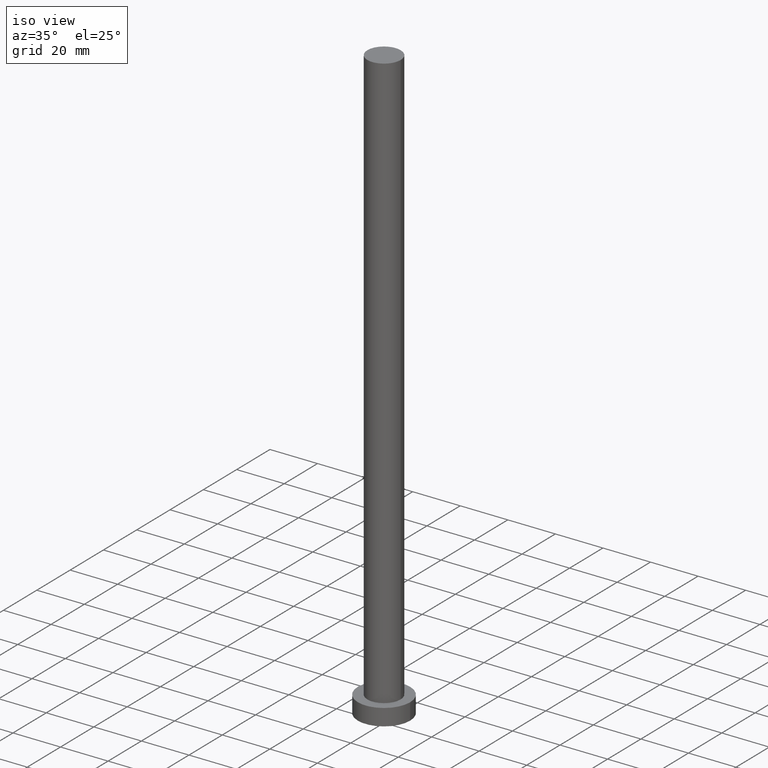
[diagram: clean part render]
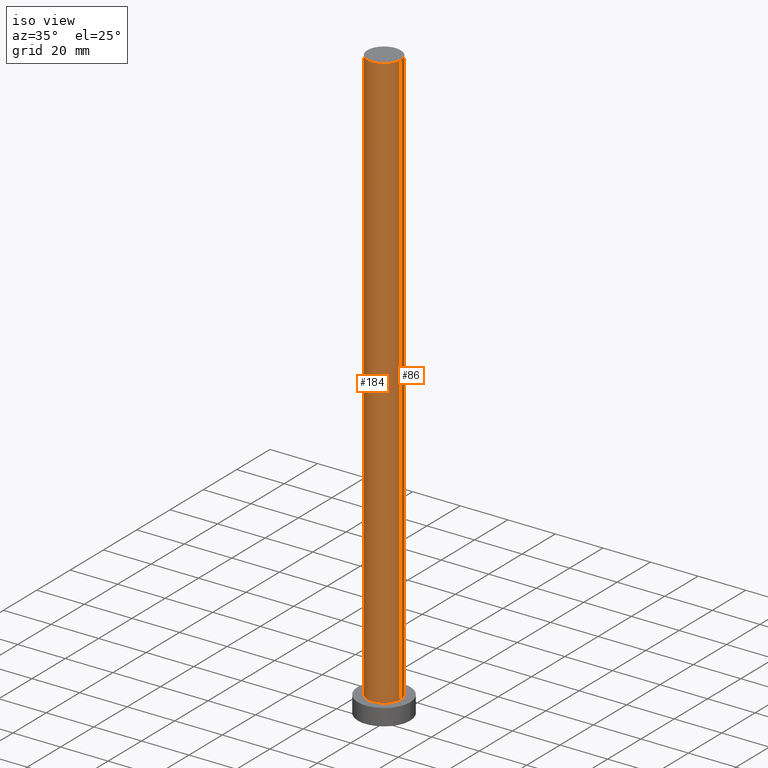
[diagram: same view with one multi-face feature highlighted, each face labeled with its STEP entity id]
A machine part, iso view. The highlighted faces form ONE feature: a constant-radius fillet chain: 2 tangent blend faces with common blend radius 7 mm. The faces share edges in the B-rep.
Their STEP definitions:
[1] entity #184 (Cylinder):
#7 = EDGE_CURVE ( 'NONE', #233, #238, #235, .T. ) ;
#8 = CARTESIAN_POINT ( 'NONE',  ( -7.000000000000000888, 0.000000000000000000, 7.000000000000000000 ) ) ;
#12 = CIRCLE ( 'NONE', #214, 7.000000000000000888 ) ;
#14 = EDGE_CURVE ( 'NONE', #238, #171, #221, .T. ) ;
#16 = CARTESIAN_POINT ( 'NONE',  ( 7.000000000000000888, 8.572527594031474176E-16, 250.0000000000000000 ) ) ;
#25 = EDGE_CURVE ( 'NONE', #233, #169, #250, .T. ) ;
#53 = DIRECTION ( 'NONE',  ( 1.000000000000000000, 0.000000000000000000, 0.000000000000000000 ) ) ;
#56 = DIRECTION ( 'NONE',  ( -0.000000000000000000, -0.000000000000000000, -1.000000000000000000 ) ) ;
#64 = CARTESIAN_POINT ( 'NONE',  ( 7.000000000000000888, 8.572527594031474176E-16, 7.000000000000000000 ) ) ;
#66 = CYLINDRICAL_SURFACE ( 'NONE', #72, 7.000000000000000888 ) ;
#72 = AXIS2_PLACEMENT_3D ( 'NONE', #210, #182, #87 ) ;
#73 = DIRECTION ( 'NONE',  ( 0.000000000000000000, 0.000000000000000000, 1.000000000000000000 ) ) ;
#80 = VECTOR ( 'NONE', #83, 1000.000000000000000 ) ;
#82 = EDGE_CURVE ( 'NONE', #169, #171, #12, .T. ) ;
#83 = DIRECTION ( 'NONE',  ( -0.000000000000000000, -0.000000000000000000, -1.000000000000000000 ) ) ;
#87 = DIRECTION ( 'NONE',  ( -1.000000000000000000, 0.000000000000000000, 0.000000000000000000 ) ) ;
#90 = DIRECTION ( 'NONE',  ( 0.000000000000000000, 0.000000000000000000, 1.000000000000000000 ) ) ;
#92 = ORIENTED_EDGE ( 'NONE', *, *, #25, .T. ) ;
#146 = CARTESIAN_POINT ( 'NONE',  ( -7.000000000000000888, 0.000000000000000000, 250.0000000000000000 ) ) ;
#153 = CARTESIAN_POINT ( 'NONE',  ( 0.000000000000000000, 0.000000000000000000, 7.000000000000000000 ) ) ;
#162 = CARTESIAN_POINT ( 'NONE',  ( 7.000000000000000888, 8.572527594031474176E-16, 250.0000000000000000 ) ) ;
#163 = CARTESIAN_POINT ( 'NONE',  ( -7.000000000000000888, 0.000000000000000000, 250.0000000000000000 ) ) ;
#167 = EDGE_LOOP ( 'NONE', ( #252, #216, #92, #194 ) ) ;
#169 = VERTEX_POINT ( 'NONE', #8 ) ;
#171 = VERTEX_POINT ( 'NONE', #64 ) ;
#174 = VECTOR ( 'NONE', #56, 1000.000000000000000 ) ;
#182 = DIRECTION ( 'NONE',  ( -0.000000000000000000, -0.000000000000000000, -1.000000000000000000 ) ) ;
#183 = AXIS2_PLACEMENT_3D ( 'NONE', #253, #90, #239 ) ;
#184 = ADVANCED_FACE ( 'NONE', ( #240 ), #66, .T. ) ;
#194 = ORIENTED_EDGE ( 'NONE', *, *, #82, .T. ) ;
#210 = CARTESIAN_POINT ( 'NONE',  ( 0.000000000000000000, 0.000000000000000000, 250.0000000000000000 ) ) ;
#214 = AXIS2_PLACEMENT_3D ( 'NONE', #153, #73, #53 ) ;
#216 = ORIENTED_EDGE ( 'NONE', *, *, #7, .F. ) ;
#221 = LINE ( 'NONE', #16, #80 ) ;
#233 = VERTEX_POINT ( 'NONE', #163 ) ;
#235 = CIRCLE ( 'NONE', #183, 7.000000000000000888 ) ;
#238 = VERTEX_POINT ( 'NONE', #162 ) ;
#239 = DIRECTION ( 'NONE',  ( 1.000000000000000000, 0.000000000000000000, 0.000000000000000000 ) ) ;
#240 = FACE_OUTER_BOUND ( 'NONE', #167, .T. ) ;
#250 = LINE ( 'NONE', #146, #174 ) ;
#252 = ORIENTED_EDGE ( 'NONE', *, *, #14, .F. ) ;
#253 = CARTESIAN_POINT ( 'NONE',  ( 0.000000000000000000, 0.000000000000000000, 250.0000000000000000 ) ) ;
[2] entity #86 (Cylinder):
#8 = CARTESIAN_POINT ( 'NONE',  ( -7.000000000000000888, 0.000000000000000000, 7.000000000000000000 ) ) ;
#10 = DIRECTION ( 'NONE',  ( 1.000000000000000000, 0.000000000000000000, 0.000000000000000000 ) ) ;
#11 = AXIS2_PLACEMENT_3D ( 'NONE', #165, #28, #121 ) ;
#14 = EDGE_CURVE ( 'NONE', #238, #171, #221, .T. ) ;
#15 = DIRECTION ( 'NONE',  ( 0.000000000000000000, 0.000000000000000000, 1.000000000000000000 ) ) ;
#16 = CARTESIAN_POINT ( 'NONE',  ( 7.000000000000000888, 8.572527594031474176E-16, 250.0000000000000000 ) ) ;
#25 = EDGE_CURVE ( 'NONE', #233, #169, #250, .T. ) ;
#28 = DIRECTION ( 'NONE',  ( -0.000000000000000000, -0.000000000000000000, -1.000000000000000000 ) ) ;
#40 = CIRCLE ( 'NONE', #57, 7.000000000000000888 ) ;
#52 = CIRCLE ( 'NONE', #202, 7.000000000000000888 ) ;
#56 = DIRECTION ( 'NONE',  ( -0.000000000000000000, -0.000000000000000000, -1.000000000000000000 ) ) ;
#57 = AXIS2_PLACEMENT_3D ( 'NONE', #191, #15, #76 ) ;
#64 = CARTESIAN_POINT ( 'NONE',  ( 7.000000000000000888, 8.572527594031474176E-16, 7.000000000000000000 ) ) ;
#76 = DIRECTION ( 'NONE',  ( 1.000000000000000000, 0.000000000000000000, 0.000000000000000000 ) ) ;
#79 = ORIENTED_EDGE ( 'NONE', *, *, #242, .F. ) ;
#80 = VECTOR ( 'NONE', #83, 1000.000000000000000 ) ;
#83 = DIRECTION ( 'NONE',  ( -0.000000000000000000, -0.000000000000000000, -1.000000000000000000 ) ) ;
#86 = ADVANCED_FACE ( 'NONE', ( #230 ), #125, .T. ) ;
#94 = ORIENTED_EDGE ( 'NONE', *, *, #116, .T. ) ;
#116 = EDGE_CURVE ( 'NONE', #171, #169, #40, .T. ) ;
#121 = DIRECTION ( 'NONE',  ( -1.000000000000000000, 0.000000000000000000, 0.000000000000000000 ) ) ;
#125 = CYLINDRICAL_SURFACE ( 'NONE', #11, 7.000000000000000888 ) ;
#146 = CARTESIAN_POINT ( 'NONE',  ( -7.000000000000000888, 0.000000000000000000, 250.0000000000000000 ) ) ;
#162 = CARTESIAN_POINT ( 'NONE',  ( 7.000000000000000888, 8.572527594031474176E-16, 250.0000000000000000 ) ) ;
#163 = CARTESIAN_POINT ( 'NONE',  ( -7.000000000000000888, 0.000000000000000000, 250.0000000000000000 ) ) ;
#164 = EDGE_LOOP ( 'NONE', ( #79, #190, #94, #172 ) ) ;
#165 = CARTESIAN_POINT ( 'NONE',  ( 0.000000000000000000, 0.000000000000000000, 250.0000000000000000 ) ) ;
#169 = VERTEX_POINT ( 'NONE', #8 ) ;
#171 = VERTEX_POINT ( 'NONE', #64 ) ;
#172 = ORIENTED_EDGE ( 'NONE', *, *, #25, .F. ) ;
#174 = VECTOR ( 'NONE', #56, 1000.000000000000000 ) ;
#189 = DIRECTION ( 'NONE',  ( 0.000000000000000000, 0.000000000000000000, 1.000000000000000000 ) ) ;
#190 = ORIENTED_EDGE ( 'NONE', *, *, #14, .T. ) ;
#191 = CARTESIAN_POINT ( 'NONE',  ( 0.000000000000000000, 0.000000000000000000, 7.000000000000000000 ) ) ;
#202 = AXIS2_PLACEMENT_3D ( 'NONE', #212, #189, #10 ) ;
#212 = CARTESIAN_POINT ( 'NONE',  ( 0.000000000000000000, 0.000000000000000000, 250.0000000000000000 ) ) ;
#221 = LINE ( 'NONE', #16, #80 ) ;
#230 = FACE_OUTER_BOUND ( 'NONE', #164, .T. ) ;
#233 = VERTEX_POINT ( 'NONE', #163 ) ;
#238 = VERTEX_POINT ( 'NONE', #162 ) ;
#242 = EDGE_CURVE ( 'NONE', #238, #233, #52, .T. ) ;
#250 = LINE ( 'NONE', #146, #174 ) ;